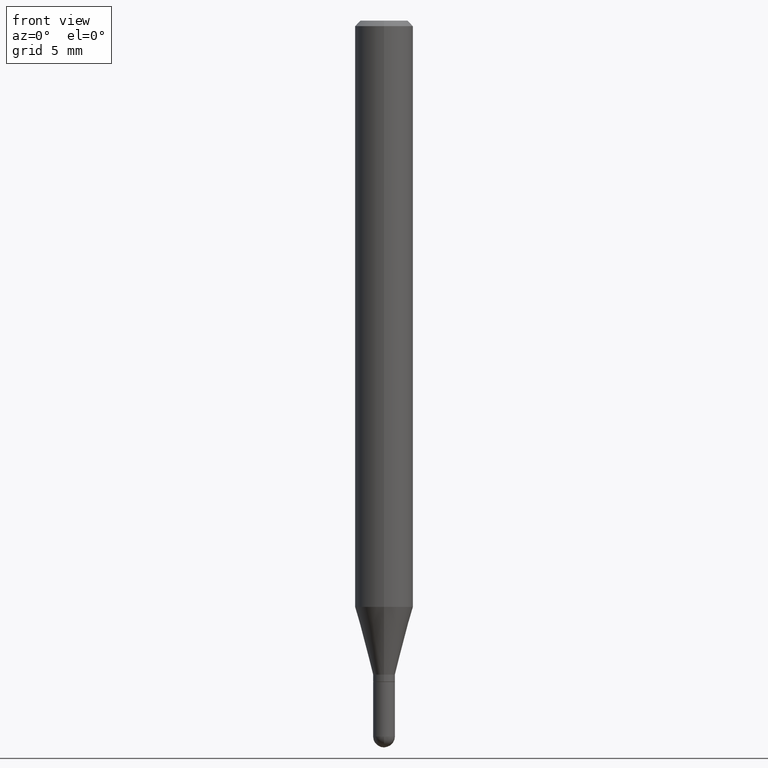
[diagram: clean part render]
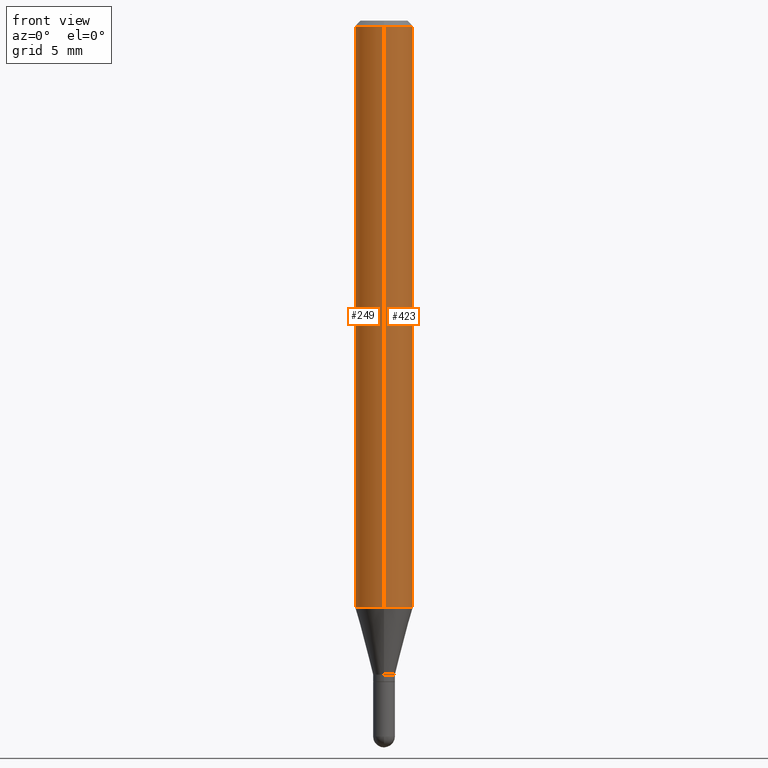
[diagram: same view with one multi-face feature highlighted, each face labeled with its STEP entity id]
A machine part, front view. The highlighted faces form ONE feature: a constant-radius fillet chain: 2 tangent blend faces with common blend radius 2.0002 mm. The faces share edges in the B-rep.
Their STEP definitions:
[1] entity #249 (Cylinder):
#17 = DIRECTION ( 'NONE',  ( -2.445486363114738978E-29, 3.491456196320676645E-15, 1.000000000000000000 ) ) ;
#37 = VECTOR ( 'NONE', #108, 39.37007874015748143 ) ;
#42 = CARTESIAN_POINT ( 'NONE',  ( 3.668229544672112864E-31, -5.237184294481020589E-17, -0.01500000000000001679 ) ) ;
#57 = CYLINDRICAL_SURFACE ( 'NONE', #173, 0.07875000000000000056 ) ;
#59 = AXIS2_PLACEMENT_3D ( 'NONE', #42, #203, #321 ) ;
#62 = ORIENTED_EDGE ( 'NONE', *, *, #214, .T. ) ;
#73 = LINE ( 'NONE', #393, #37 ) ;
#86 = ORIENTED_EDGE ( 'NONE', *, *, #106, .T. ) ;
#88 = CARTESIAN_POINT ( 'NONE',  ( 3.883146467924801368E-29, -5.544024289462241926E-15, -1.587883100267612813 ) ) ;
#106 = EDGE_CURVE ( 'NONE', #222, #489, #167, .T. ) ;
#108 = DIRECTION ( 'NONE',  ( -2.445486363114738978E-29, 3.491456196320676251E-15, 1.000000000000000000 ) ) ;
#118 = AXIS2_PLACEMENT_3D ( 'NONE', #88, #17, #260 ) ;
#152 = EDGE_LOOP ( 'NONE', ( #406, #86, #62, #250 ) ) ;
#167 = CIRCLE ( 'NONE', #118, 0.07875000000000000056 ) ;
#173 = AXIS2_PLACEMENT_3D ( 'NONE', #508, #215, #375 ) ;
#203 = DIRECTION ( 'NONE',  ( -2.445486363114738978E-29, 3.491456196320676645E-15, 1.000000000000000000 ) ) ;
#214 = EDGE_CURVE ( 'NONE', #489, #320, #73, .T. ) ;
#215 = DIRECTION ( 'NONE',  ( -2.445486363114738978E-29, 3.491456196320676645E-15, 1.000000000000000000 ) ) ;
#220 = CIRCLE ( 'NONE', #59, 0.07875000000000000056 ) ;
#222 = VERTEX_POINT ( 'NONE', #315 ) ;
#249 = ADVANCED_FACE ( 'NONE', ( #416 ), #57, .T. ) ;
#250 = ORIENTED_EDGE ( 'NONE', *, *, #472, .F. ) ;
#260 = DIRECTION ( 'NONE',  ( -6.982962677686264344E-15, -1.000000000000000000, 3.469013325287953293E-15 ) ) ;
#267 = CARTESIAN_POINT ( 'NONE',  ( -5.499083108677547901E-16, -0.07875000000000556555, -1.587883100267612591 ) ) ;
#315 = CARTESIAN_POINT ( 'NONE',  ( 5.595524044111173573E-16, 0.07874999999999443556, -1.587883100267613035 ) ) ;
#320 = VERTEX_POINT ( 'NONE', #470 ) ;
#321 = DIRECTION ( 'NONE',  ( -6.982962677686264344E-15, -1.000000000000000000, 3.496114991891765576E-15 ) ) ;
#330 = DIRECTION ( 'NONE',  ( -2.445486363114738978E-29, 3.491456196320676251E-15, 1.000000000000000000 ) ) ;
#365 = CARTESIAN_POINT ( 'NONE',  ( 5.595524044110787031E-16, 0.07875000000000000056, -2.749521754602532666E-16 ) ) ;
#375 = DIRECTION ( 'NONE',  ( -6.982962677686264344E-15, -1.000000000000000000, 3.491456196320676251E-15 ) ) ;
#393 = CARTESIAN_POINT ( 'NONE',  ( -5.499083108677933457E-16, -0.07875000000000000056, 2.749521754602532666E-16 ) ) ;
#400 = LINE ( 'NONE', #365, #411 ) ;
#402 = EDGE_CURVE ( 'NONE', #222, #484, #400, .T. ) ;
#406 = ORIENTED_EDGE ( 'NONE', *, *, #402, .F. ) ;
#411 = VECTOR ( 'NONE', #330, 39.37007874015748143 ) ;
#416 = FACE_OUTER_BOUND ( 'NONE', #152, .T. ) ;
#470 = CARTESIAN_POINT ( 'NONE',  ( -5.499083108677930499E-16, -0.07875000000000004219, -0.01499999999999974097 ) ) ;
#472 = EDGE_CURVE ( 'NONE', #484, #320, #220, .T. ) ;
#484 = VERTEX_POINT ( 'NONE', #510 ) ;
#489 = VERTEX_POINT ( 'NONE', #267 ) ;
#508 = CARTESIAN_POINT ( 'NONE',  ( 0.000000000000000000, 0.000000000000000000, 0.000000000000000000 ) ) ;
#510 = CARTESIAN_POINT ( 'NONE',  ( 5.595524044111179489E-16, 0.07874999999999994504, -0.01500000000000029261 ) ) ;
[2] entity #423 (Cylinder):
#28 = ORIENTED_EDGE ( 'NONE', *, *, #146, .T. ) ;
#37 = VECTOR ( 'NONE', #108, 39.37007874015748143 ) ;
#41 = CYLINDRICAL_SURFACE ( 'NONE', #247, 0.07875000000000000056 ) ;
#73 = LINE ( 'NONE', #393, #37 ) ;
#108 = DIRECTION ( 'NONE',  ( -2.445486363114738978E-29, 3.491456196320676251E-15, 1.000000000000000000 ) ) ;
#126 = DIRECTION ( 'NONE',  ( -6.982962677686264344E-15, -1.000000000000000000, 3.491456196320676251E-15 ) ) ;
#146 = EDGE_CURVE ( 'NONE', #489, #222, #418, .T. ) ;
#161 = DIRECTION ( 'NONE',  ( -2.445486363114738978E-29, 3.491456196320676645E-15, 1.000000000000000000 ) ) ;
#191 = CIRCLE ( 'NONE', #480, 0.07875000000000000056 ) ;
#197 = CARTESIAN_POINT ( 'NONE',  ( 3.668229544672112864E-31, -5.237184294481020589E-17, -0.01500000000000001679 ) ) ;
#214 = EDGE_CURVE ( 'NONE', #489, #320, #73, .T. ) ;
#222 = VERTEX_POINT ( 'NONE', #315 ) ;
#247 = AXIS2_PLACEMENT_3D ( 'NONE', #482, #161, #126 ) ;
#267 = CARTESIAN_POINT ( 'NONE',  ( -5.499083108677547901E-16, -0.07875000000000556555, -1.587883100267612591 ) ) ;
#281 = DIRECTION ( 'NONE',  ( -2.445486363114738978E-29, 3.491456196320676645E-15, 1.000000000000000000 ) ) ;
#295 = CARTESIAN_POINT ( 'NONE',  ( 3.883146467924801368E-29, -5.544024289462241926E-15, -1.587883100267612813 ) ) ;
#297 = ORIENTED_EDGE ( 'NONE', *, *, #415, .F. ) ;
#299 = DIRECTION ( 'NONE',  ( -6.982962677686264344E-15, -1.000000000000000000, 3.469013325287953293E-15 ) ) ;
#305 = AXIS2_PLACEMENT_3D ( 'NONE', #295, #412, #299 ) ;
#315 = CARTESIAN_POINT ( 'NONE',  ( 5.595524044111173573E-16, 0.07874999999999443556, -1.587883100267613035 ) ) ;
#320 = VERTEX_POINT ( 'NONE', #470 ) ;
#328 = FACE_OUTER_BOUND ( 'NONE', #373, .T. ) ;
#330 = DIRECTION ( 'NONE',  ( -2.445486363114738978E-29, 3.491456196320676251E-15, 1.000000000000000000 ) ) ;
#365 = CARTESIAN_POINT ( 'NONE',  ( 5.595524044110787031E-16, 0.07875000000000000056, -2.749521754602532666E-16 ) ) ;
#371 = ORIENTED_EDGE ( 'NONE', *, *, #214, .F. ) ;
#373 = EDGE_LOOP ( 'NONE', ( #28, #440, #297, #371 ) ) ;
#393 = CARTESIAN_POINT ( 'NONE',  ( -5.499083108677933457E-16, -0.07875000000000000056, 2.749521754602532666E-16 ) ) ;
#400 = LINE ( 'NONE', #365, #411 ) ;
#402 = EDGE_CURVE ( 'NONE', #222, #484, #400, .T. ) ;
#411 = VECTOR ( 'NONE', #330, 39.37007874015748143 ) ;
#412 = DIRECTION ( 'NONE',  ( -2.445486363114738978E-29, 3.491456196320676645E-15, 1.000000000000000000 ) ) ;
#415 = EDGE_CURVE ( 'NONE', #320, #484, #191, .T. ) ;
#418 = CIRCLE ( 'NONE', #305, 0.07875000000000000056 ) ;
#423 = ADVANCED_FACE ( 'NONE', ( #328 ), #41, .T. ) ;
#435 = DIRECTION ( 'NONE',  ( -6.982962677686264344E-15, -1.000000000000000000, 3.496114991891765576E-15 ) ) ;
#440 = ORIENTED_EDGE ( 'NONE', *, *, #402, .T. ) ;
#470 = CARTESIAN_POINT ( 'NONE',  ( -5.499083108677930499E-16, -0.07875000000000004219, -0.01499999999999974097 ) ) ;
#480 = AXIS2_PLACEMENT_3D ( 'NONE', #197, #281, #435 ) ;
#482 = CARTESIAN_POINT ( 'NONE',  ( 0.000000000000000000, 0.000000000000000000, 0.000000000000000000 ) ) ;
#484 = VERTEX_POINT ( 'NONE', #510 ) ;
#489 = VERTEX_POINT ( 'NONE', #267 ) ;
#510 = CARTESIAN_POINT ( 'NONE',  ( 5.595524044111179489E-16, 0.07874999999999994504, -0.01500000000000029261 ) ) ;